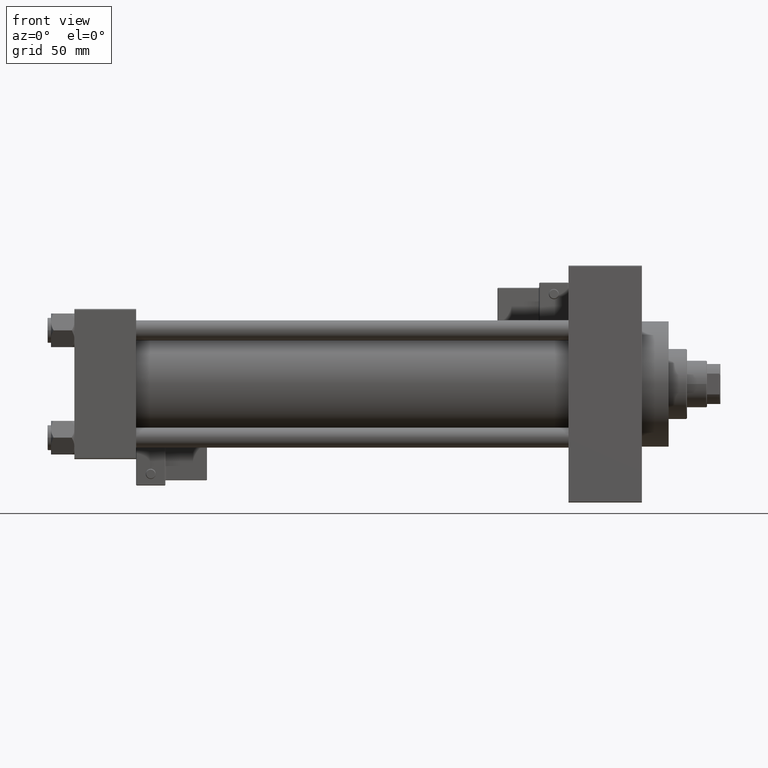
[diagram: clean part render]
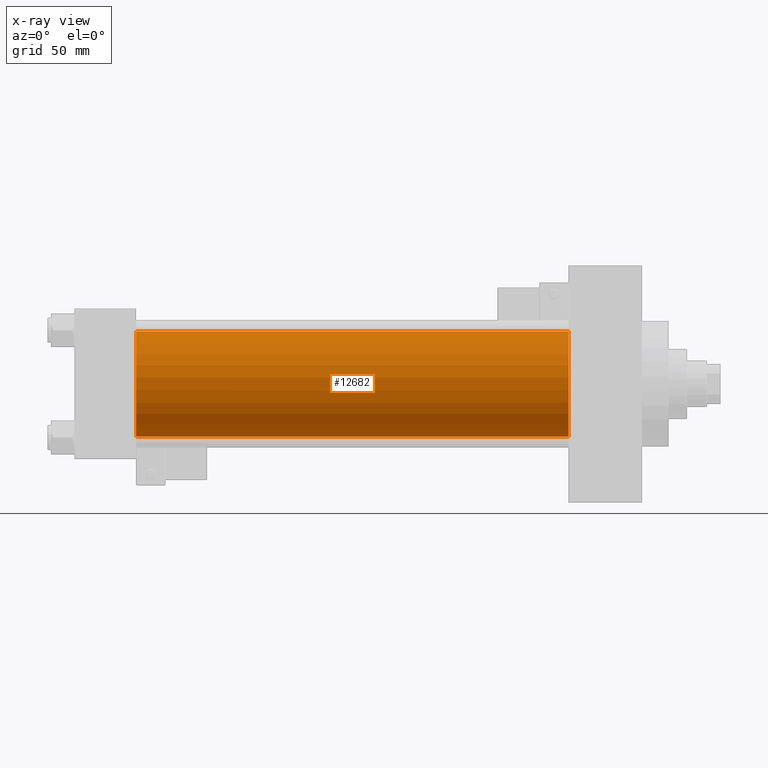
[diagram: x-ray — body ghosted, one internal face saturated and labeled with its STEP entity id]
A machine part, front view, then the same camera in x-ray: the body is ghosted and one INTERNAL B-rep face — a face not visible from any outside direction — is saturated and labeled: STEP entity #12682.
In plain terms, the highlighted cylindrical surface (partial cylindrical patch) has radius 31.5 mm, axis along (-1, -0, -0).
Its self-contained STEP definition (entity closure, byte-faithful):
#2791 = CARTESIAN_POINT ( 'NONE',  ( 296.0000000000000000, -2.602085213965210642E-15, 0.000000000000000000 ) ) ;
#4874 = DIRECTION ( 'NONE',  ( 1.000000000000000000, 0.000000000000000000, 0.000000000000000000 ) ) ;
#5566 = VECTOR ( 'NONE', #49400, 1000.000000000000000 ) ;
#7854 = VERTEX_POINT ( 'NONE', #43546 ) ;
#12682 = ADVANCED_FACE ( 'NONE', ( #29843 ), #38198, .F. ) ;
#14578 = ORIENTED_EDGE ( 'NONE', *, *, #29352, .F. ) ;
#15136 = EDGE_CURVE ( 'NONE', #22903, #48834, #21768, .T. ) ;
#16181 = CARTESIAN_POINT ( 'NONE',  ( 37.00000000000000000, -2.602085213965210642E-15, 31.50000000000000000 ) ) ;
#16491 = LINE ( 'NONE', #32380, #44108 ) ;
#17612 = CARTESIAN_POINT ( 'NONE',  ( 296.0000000000000000, -2.602085213965210642E-15, 31.50000000000000000 ) ) ;
#18655 = DIRECTION ( 'NONE',  ( -1.000000000000000000, -0.000000000000000000, -0.000000000000000000 ) ) ;
#18678 = DIRECTION ( 'NONE',  ( 1.000000000000000000, 0.000000000000000000, 0.000000000000000000 ) ) ;
#20229 = CARTESIAN_POINT ( 'NONE',  ( 37.00000000000000000, -2.602085213965210642E-15, 0.000000000000000000 ) ) ;
#20404 = DIRECTION ( 'NONE',  ( -1.000000000000000000, -0.000000000000000000, -0.000000000000000000 ) ) ;
#20452 = ORIENTED_EDGE ( 'NONE', *, *, #46668, .T. ) ;
#21768 = LINE ( 'NONE', #17612, #5566 ) ;
#22817 = DIRECTION ( 'NONE',  ( 0.000000000000000000, 0.000000000000000000, -1.000000000000000000 ) ) ;
#22903 = VERTEX_POINT ( 'NONE', #42817 ) ;
#26404 = ORIENTED_EDGE ( 'NONE', *, *, #34964, .T. ) ;
#29352 = EDGE_CURVE ( 'NONE', #48834, #42572, #44649, .T. ) ;
#29843 = FACE_OUTER_BOUND ( 'NONE', #34015, .T. ) ;
#32380 = CARTESIAN_POINT ( 'NONE',  ( 296.0000000000000000, 1.255552203348951850E-15, -31.50000000000000000 ) ) ;
#34015 = EDGE_LOOP ( 'NONE', ( #26404, #20452, #14578, #43230 ) ) ;
#34964 = EDGE_CURVE ( 'NONE', #22903, #7854, #44052, .T. ) ;
#36590 = AXIS2_PLACEMENT_3D ( 'NONE', #38482, #18678, #22817 ) ;
#38198 = CYLINDRICAL_SURFACE ( 'NONE', #40416, 31.50000000000000000 ) ;
#38482 = CARTESIAN_POINT ( 'NONE',  ( 296.0000000000000000, -2.602085213965210642E-15, 0.000000000000000000 ) ) ;
#40416 = AXIS2_PLACEMENT_3D ( 'NONE', #2791, #18655, #46517 ) ;
#41295 = DIRECTION ( 'NONE',  ( 0.000000000000000000, 0.000000000000000000, -1.000000000000000000 ) ) ;
#42572 = VERTEX_POINT ( 'NONE', #46037 ) ;
#42817 = CARTESIAN_POINT ( 'NONE',  ( 296.0000000000000000, -2.602085213965210642E-15, 31.50000000000000000 ) ) ;
#43230 = ORIENTED_EDGE ( 'NONE', *, *, #15136, .F. ) ;
#43546 = CARTESIAN_POINT ( 'NONE',  ( 296.0000000000000000, 1.255552203348951850E-15, -31.50000000000000000 ) ) ;
#44052 = CIRCLE ( 'NONE', #36590, 31.50000000000000000 ) ;
#44108 = VECTOR ( 'NONE', #20404, 1000.000000000000000 ) ;
#44649 = CIRCLE ( 'NONE', #48827, 31.50000000000000000 ) ;
#46037 = CARTESIAN_POINT ( 'NONE',  ( 37.00000000000000000, 1.255552203348951850E-15, -31.50000000000000000 ) ) ;
#46517 = DIRECTION ( 'NONE',  ( 0.000000000000000000, 0.000000000000000000, 1.000000000000000000 ) ) ;
#46668 = EDGE_CURVE ( 'NONE', #7854, #42572, #16491, .T. ) ;
#48827 = AXIS2_PLACEMENT_3D ( 'NONE', #20229, #4874, #41295 ) ;
#48834 = VERTEX_POINT ( 'NONE', #16181 ) ;
#49400 = DIRECTION ( 'NONE',  ( -1.000000000000000000, -0.000000000000000000, -0.000000000000000000 ) ) ;